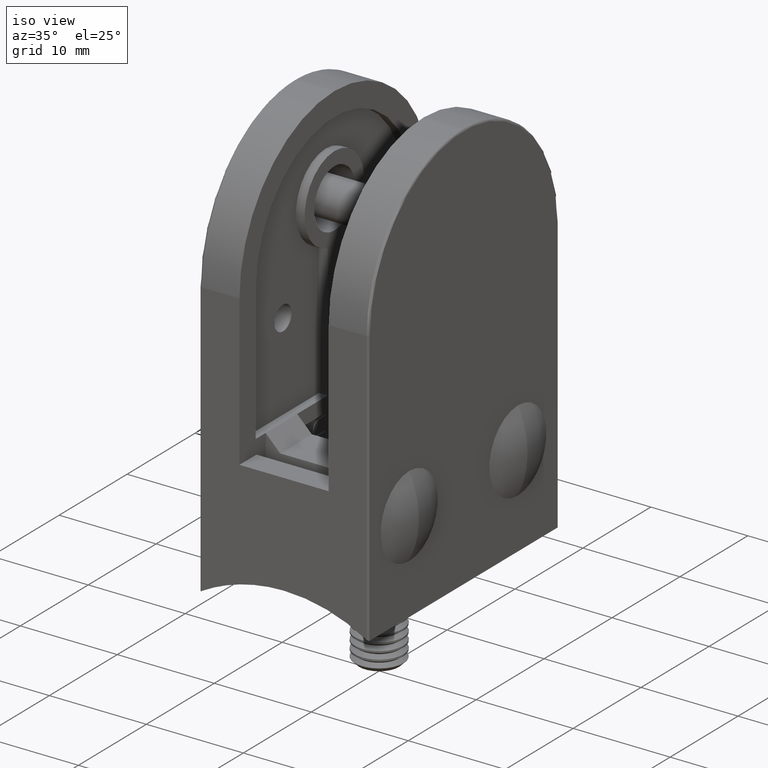
[diagram: clean part render]
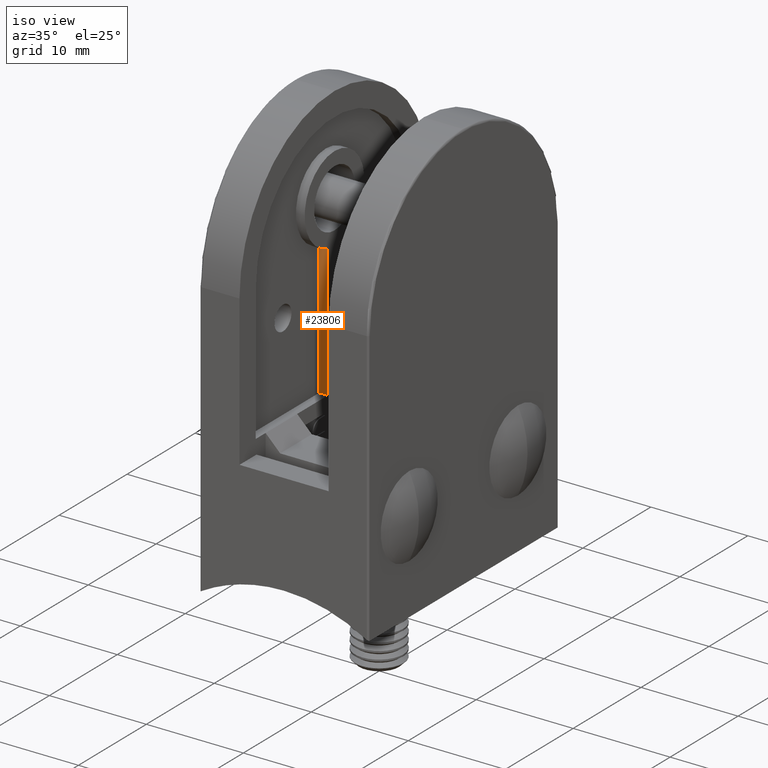
[diagram: same view with one face highlighted and labeled with its STEP entity id]
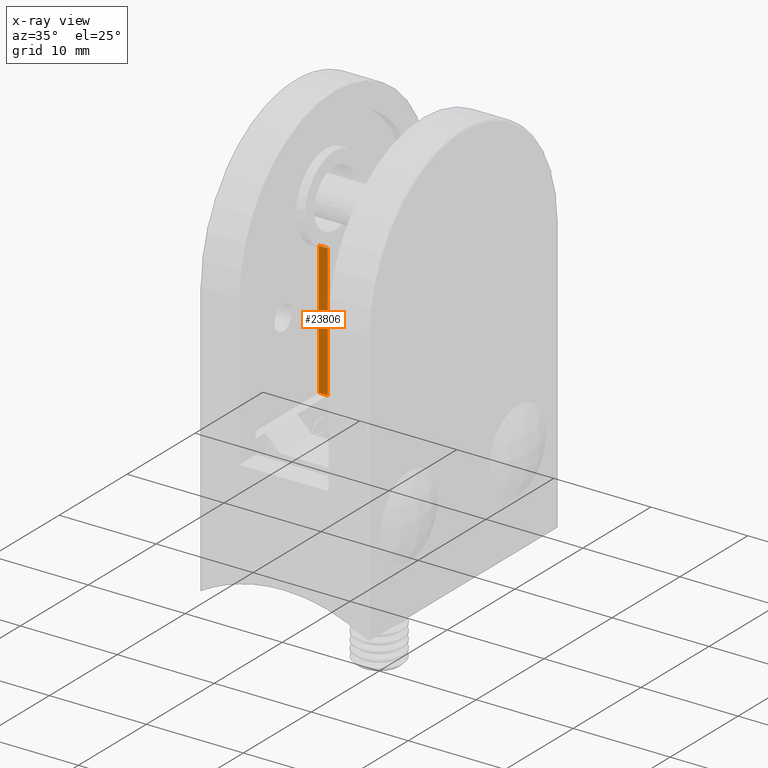
[diagram: x-ray of the same camera — body ghosted, the highlighted face saturated]
A machine part, iso view. The second image highlights one B-rep face of the part: STEP entity #23806.
The next image is the same camera in x-ray: the body ghosted, the highlighted face saturated — about 0% of this face is hidden behind the body in this view.
In plain terms, the highlighted planar face has unit normal (0, 1, 0).
Its self-contained STEP definition (entity closure, byte-faithful):
#565 = PLANE ( 'NONE',  #58420 ) ;
#3237 = VECTOR ( 'NONE', #21754, 1000.000000000000000 ) ;
#5317 = DIRECTION ( 'NONE',  ( 0.0000000000000000000, -1.264823475192494700E-016, 1.000000000000000000 ) ) ;
#9675 = CARTESIAN_POINT ( 'NONE',  ( 28.16657433038610800, -1.000000000000000000, 12.00000000000000200 ) ) ;
#10312 = LINE ( 'NONE', #20155, #26527 ) ;
#12033 = VERTEX_POINT ( 'NONE', #19460 ) ;
#18866 = ORIENTED_EDGE ( 'NONE', *, *, #34425, .F. ) ;
#18908 = DIRECTION ( 'NONE',  ( -1.000000000000000000, -0.0000000000000000000, -0.0000000000000000000 ) ) ;
#19460 = CARTESIAN_POINT ( 'NONE',  ( 4.099999999999999600, -1.000000000000002700, 25.71514294287428400 ) ) ;
#19501 = LINE ( 'NONE', #58930, #3237 ) ;
#19652 = VERTEX_POINT ( 'NONE', #44099 ) ;
#20155 = CARTESIAN_POINT ( 'NONE',  ( 4.099999999999999600, -1.000000000000000000, 12.00000000000000200 ) ) ;
#20564 = DIRECTION ( 'NONE',  ( 0.0000000000000000000, 1.264823475192494700E-016, -1.000000000000000000 ) ) ;
#21549 = FACE_OUTER_BOUND ( 'NONE', #40423, .T. ) ;
#21754 = DIRECTION ( 'NONE',  ( -1.000000000000000000, -0.0000000000000000000, -0.0000000000000000000 ) ) ;
#23806 = ADVANCED_FACE ( 'NONE', ( #21549 ), #565, .F. ) ;
#25078 = CARTESIAN_POINT ( 'NONE',  ( 3.199999999999999700, -1.000000000000000000, 12.00000000000000200 ) ) ;
#26527 = VECTOR ( 'NONE', #20564, 1000.000000000000000 ) ;
#26898 = VECTOR ( 'NONE', #30314, 1000.000000000000000 ) ;
#29174 = ORIENTED_EDGE ( 'NONE', *, *, #30995, .T. ) ;
#30314 = DIRECTION ( 'NONE',  ( -0.0000000000000000000, 1.264823475192494700E-016, -1.000000000000000000 ) ) ;
#30995 = EDGE_CURVE ( 'NONE', #12033, #59406, #47898, .T. ) ;
#33299 = CARTESIAN_POINT ( 'NONE',  ( 28.16657433038610800, -1.000000000000002700, 25.71514294287428400 ) ) ;
#33738 = DIRECTION ( 'NONE',  ( -0.0000000000000000000, 1.000000000000000000, 1.264823475192494700E-016 ) ) ;
#34425 = EDGE_CURVE ( 'NONE', #44906, #19652, #19501, .T. ) ;
#40413 = CARTESIAN_POINT ( 'NONE',  ( 3.199999999999999700, -1.000000000000002700, 25.71514294287428400 ) ) ;
#40423 = EDGE_LOOP ( 'NONE', ( #57268, #29174, #46158, #18866 ) ) ;
#44099 = CARTESIAN_POINT ( 'NONE',  ( 3.199999999999999700, -1.000000000000000000, 12.00000000000000200 ) ) ;
#44906 = VERTEX_POINT ( 'NONE', #52292 ) ;
#45521 = LINE ( 'NONE', #25078, #26898 ) ;
#46158 = ORIENTED_EDGE ( 'NONE', *, *, #48725, .T. ) ;
#47898 = LINE ( 'NONE', #33299, #56746 ) ;
#48725 = EDGE_CURVE ( 'NONE', #59406, #19652, #45521, .T. ) ;
#52292 = CARTESIAN_POINT ( 'NONE',  ( 4.099999999999999600, -1.000000000000000000, 12.00000000000000200 ) ) ;
#55726 = EDGE_CURVE ( 'NONE', #12033, #44906, #10312, .T. ) ;
#56746 = VECTOR ( 'NONE', #18908, 1000.000000000000000 ) ;
#57268 = ORIENTED_EDGE ( 'NONE', *, *, #55726, .F. ) ;
#58420 = AXIS2_PLACEMENT_3D ( 'NONE', #9675, #33738, #5317 ) ;
#58930 = CARTESIAN_POINT ( 'NONE',  ( 28.16657433038610800, -1.000000000000000000, 12.00000000000000200 ) ) ;
#59406 = VERTEX_POINT ( 'NONE', #40413 ) ;